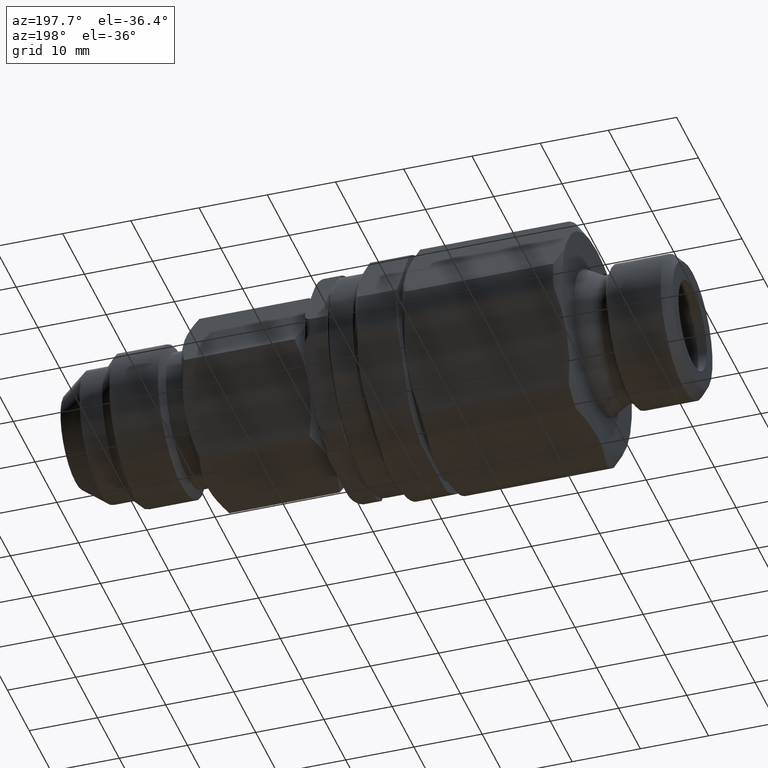
[diagram: clean part render]
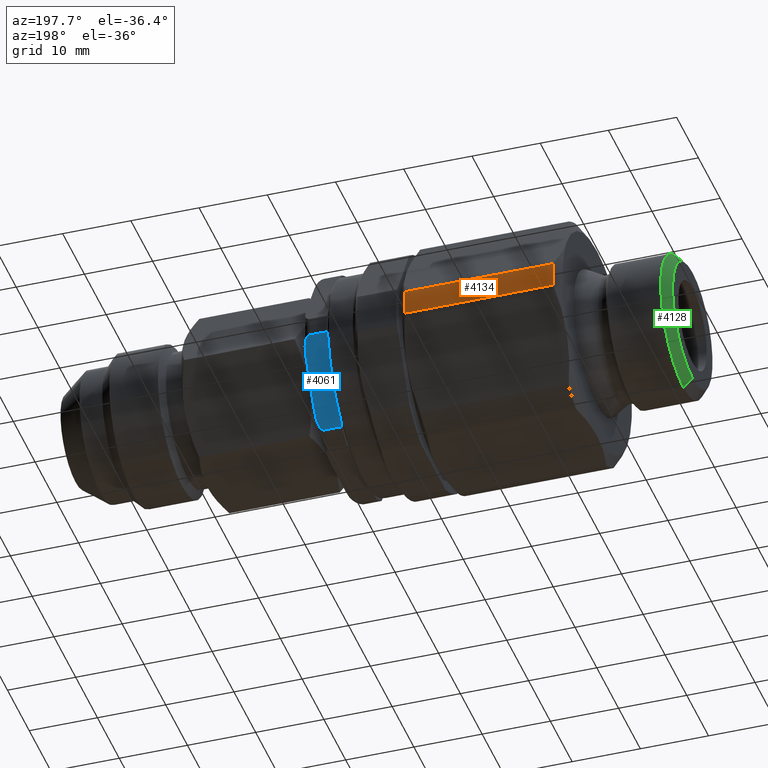
[diagram: same view with three faces highlighted in distinct colors, each labeled with its STEP entity id]
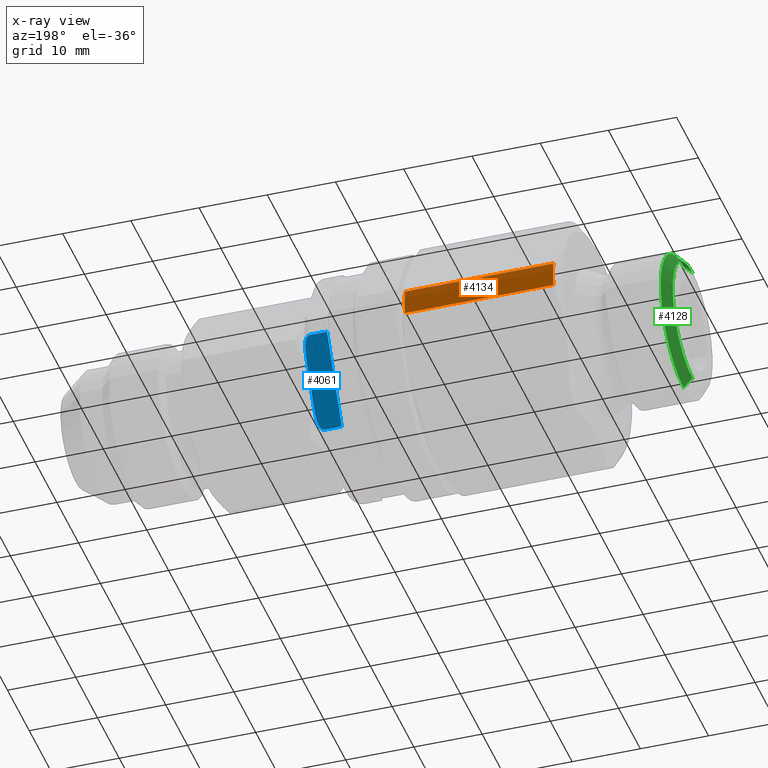
[diagram: x-ray of the same camera — body ghosted, the three highlighted faces saturated]
A machine part, auxiliary view with three faces highlighted in distinct colors.
The next image is the same camera in x-ray (body ghosted, the three faces saturated) — at least one of them is partly hidden behind the body in this view.
Their STEP definitions:

[orange] entity #4134 — the highlighted cylindrical surface (partial cylindrical patch) has radius 17.5 mm, axis along (1, -0, -0).
#179 = CARTESIAN_POINT ( 'NONE',  ( 14.86602540378444100, 0.0000000000000000000, 0.0000000000000000000 ) ) ;
#180 = DIRECTION ( 'NONE',  ( 1.000000000000000000, -0.0000000000000000000, -0.0000000000000000000 ) ) ;
#181 = DIRECTION ( 'NONE',  ( 0.0000000000000000000, 0.0000000000000000000, -1.000000000000000000 ) ) ;
#291 = CARTESIAN_POINT ( 'NONE',  ( 7.552600000000000000, 17.40076818024048000, 1.860985421095666000 ) ) ;
#292 = DIRECTION ( 'NONE',  ( 1.000000000000000000, -0.0000000000000000000, -0.0000000000000000000 ) ) ;
#293 = CARTESIAN_POINT ( 'NONE',  ( 36.63397459621555900, 0.0000000000000000000, 0.0000000000000000000 ) ) ;
#294 = DIRECTION ( 'NONE',  ( 1.000000000000000000, -0.0000000000000000000, -0.0000000000000000000 ) ) ;
#295 = DIRECTION ( 'NONE',  ( 0.0000000000000000000, 0.0000000000000000000, -1.000000000000000000 ) ) ;
#296 = CARTESIAN_POINT ( 'NONE',  ( 7.552600000000000000, 17.40076818024048000, -1.860985421095650900 ) ) ;
#297 = DIRECTION ( 'NONE',  ( -1.000000000000000000, 0.0000000000000000000, 0.0000000000000000000 ) ) ;
#530 = CARTESIAN_POINT ( 'NONE',  ( 36.63397459621555900, 17.40076818024048000, -1.860985421095649100 ) ) ;
#840 = AXIS2_PLACEMENT_3D ( 'NONE', #179, #180, #181 ) ;
#1221 = VERTEX_POINT ( 'NONE', #530 ) ;
#1342 = EDGE_CURVE ( 'NONE', #4259, #4295, #2220, .T. ) ;
#1367 = EDGE_CURVE ( 'NONE', #4295, #4307, #2242, .T. ) ;
#1368 = EDGE_CURVE ( 'NONE', #1221, #4307, #2245, .T. ) ;
#1369 = EDGE_CURVE ( 'NONE', #1221, #4259, #2244, .T. ) ;
#1739 = CARTESIAN_POINT ( 'NONE',  ( 7.552600000000000000, 0.0000000000000000000, 0.0000000000000000000 ) ) ;
#1740 = DIRECTION ( 'NONE',  ( 1.000000000000000000, -0.0000000000000000000, -0.0000000000000000000 ) ) ;
#1741 = DIRECTION ( 'NONE',  ( 0.0000000000000000000, 0.0000000000000000000, -1.000000000000000000 ) ) ;
#2220 = CIRCLE ( 'NONE', #840, 17.50000000000000000 ) ;
#2242 = LINE ( 'NONE', #291, #2243 ) ;
#2243 = VECTOR ( 'NONE', #292, 1000.000000000000000 ) ;
#2244 = LINE ( 'NONE', #296, #2246 ) ;
#2245 = CIRCLE ( 'NONE', #2648, 17.50000000000000000 ) ;
#2246 = VECTOR ( 'NONE', #297, 1000.000000000000000 ) ;
#2565 = FACE_OUTER_BOUND ( 'NONE', #4913, .T. ) ;
#2566 = CYLINDRICAL_SURFACE ( 'NONE', #2889, 17.50000000000000000 ) ;
#2648 = AXIS2_PLACEMENT_3D ( 'NONE', #293, #294, #295 ) ;
#2889 = AXIS2_PLACEMENT_3D ( 'NONE', #1739, #1740, #1741 ) ;
#4134 = ADVANCED_FACE ( 'NONE', ( #2565 ), #2566, .T. ) ;
#4259 = VERTEX_POINT ( 'NONE', #5878 ) ;
#4295 = VERTEX_POINT ( 'NONE', #5914 ) ;
#4307 = VERTEX_POINT ( 'NONE', #5926 ) ;
#4913 = EDGE_LOOP ( 'NONE', ( #5481, #5482, #5483, #5484 ) ) ;
#5481 = ORIENTED_EDGE ( 'NONE', *, *, #1342, .T. ) ;
#5482 = ORIENTED_EDGE ( 'NONE', *, *, #1367, .T. ) ;
#5483 = ORIENTED_EDGE ( 'NONE', *, *, #1368, .F. ) ;
#5484 = ORIENTED_EDGE ( 'NONE', *, *, #1369, .T. ) ;
#5878 = CARTESIAN_POINT ( 'NONE',  ( 14.86602540378444100, 17.40076818024048000, -1.860985421095650900 ) ) ;
#5914 = CARTESIAN_POINT ( 'NONE',  ( 14.86602540378444100, 17.40076818024048000, 1.860985421095666000 ) ) ;
#5926 = CARTESIAN_POINT ( 'NONE',  ( 36.63397459621555900, 17.40076818024047600, 1.860985421095666400 ) ) ;

[blue] entity #4061 — the highlighted planar face has unit normal (0, 0.866, -0.5).
#496 = CARTESIAN_POINT ( 'NONE',  ( 48.98667093580120700, 12.98118405130843700, -6.515929680730987000 ) ) ;
#501 = CARTESIAN_POINT ( 'NONE',  ( 51.05000000000034500, 15.93930566949153200, -1.392312743069990600 ) ) ;
#520 = CARTESIAN_POINT ( 'NONE',  ( 48.50000000000000000, 12.98118405130842500, -6.515929680731016300 ) ) ;
#600 = CARTESIAN_POINT ( 'NONE',  ( 48.98667093580120700, 12.13355265844029200, -7.984070319268992600 ) ) ;
#1152 = VERTEX_POINT ( 'NONE', #5749 ) ;
#1170 = VERTEX_POINT ( 'NONE', #5775 ) ;
#1194 = VERTEX_POINT ( 'NONE', #520 ) ;
#1210 = VERTEX_POINT ( 'NONE', #501 ) ;
#1215 = VERTEX_POINT ( 'NONE', #496 ) ;
#1262 = VERTEX_POINT ( 'NONE', #600 ) ;
#1291 = VERTEX_POINT ( 'NONE', #5815 ) ;
#1447 = EDGE_CURVE ( 'NONE', #1152, #4302, #2317, .T. ) ;
#1449 = EDGE_CURVE ( 'NONE', #4302, #4242, #2319, .T. ) ;
#1452 = EDGE_CURVE ( 'NONE', #4242, #4279, #5713, .T. ) ;
#1455 = EDGE_CURVE ( 'NONE', #4286, #4270, #3264, .T. ) ;
#1460 = EDGE_CURVE ( 'NONE', #1210, #4286, #3272, .T. ) ;
#1463 = EDGE_CURVE ( 'NONE', #1291, #1210, #5716, .T. ) ;
#1557 = EDGE_CURVE ( 'NONE', #4279, #1291, #3365, .T. ) ;
#1573 = EDGE_CURVE ( 'NONE', #4270, #1194, #3390, .T. ) ;
#1575 = EDGE_CURVE ( 'NONE', #1170, #1152, #3392, .T. ) ;
#1576 = EDGE_CURVE ( 'NONE', #1262, #1170, #3395, .T. ) ;
#1577 = EDGE_CURVE ( 'NONE', #1215, #1262, #3397, .T. ) ;
#1578 = EDGE_CURVE ( 'NONE', #1194, #1215, #3399, .T. ) ;
#2317 = LINE ( 'NONE', #3656, #2318 ) ;
#2318 = VECTOR ( 'NONE', #3657, 1000.000000000000100 ) ;
#2319 = LINE ( 'NONE', #3661, #3260 ) ;
#2439 = FACE_OUTER_BOUND ( 'NONE', #4931, .T. ) ;
#2816 = AXIS2_PLACEMENT_3D ( 'NONE', #3051, #3052, #3053 ) ;
#3050 = PLANE ( 'NONE',  #2816 ) ;
#3051 = CARTESIAN_POINT ( 'NONE',  ( 34.74999999999999300, 16.74315780649914100, 5.392068201189613700E-015 ) ) ;
#3052 = DIRECTION ( 'NONE',  ( 0.0000000000000000000, 0.8660254037844391500, -0.4999999999999992800 ) ) ;
#3053 = DIRECTION ( 'NONE',  ( 0.0000000000000000000, 0.4999999999999992200, 0.8660254037844390400 ) ) ;
#3260 = VECTOR ( 'NONE', #3662, 1000.000000000000000 ) ;
#3264 = LINE ( 'NONE', #3699, #3266 ) ;
#3266 = VECTOR ( 'NONE', #3700, 1000.000000000000100 ) ;
#3272 = LINE ( 'NONE', #3711, #3274 ) ;
#3274 = VECTOR ( 'NONE', #3712, 1000.000000000000000 ) ;
#3365 = LINE ( 'NONE', #5310, #3366 ) ;
#3366 = VECTOR ( 'NONE', #5311, 1000.000000000000100 ) ;
#3390 = LINE ( 'NONE', #5371, #3391 ) ;
#3391 = VECTOR ( 'NONE', #5372, 1000.000000000000100 ) ;
#3392 = LINE ( 'NONE', #5376, #3394 ) ;
#3394 = VECTOR ( 'NONE', #5377, 1000.000000000000100 ) ;
#3395 = LINE ( 'NONE', #5378, #3396 ) ;
#3396 = VECTOR ( 'NONE', #5379, 1000.000000000000000 ) ;
#3397 = LINE ( 'NONE', #5380, #3398 ) ;
#3398 = VECTOR ( 'NONE', #5381, 1000.000000000000100 ) ;
#3399 = LINE ( 'NONE', #5382, #3400 ) ;
#3400 = VECTOR ( 'NONE', #5383, 1000.000000000000000 ) ;
#3656 = CARTESIAN_POINT ( 'NONE',  ( 48.49999999999999300, 16.01986835487435500, -1.252774078792755300 ) ) ;
#3657 = DIRECTION ( 'NONE',  ( 0.0000000000000000000, -0.4999999999999992200, -0.8660254037844390400 ) ) ;
#3661 = CARTESIAN_POINT ( 'NONE',  ( 38.72819999999999400, 9.175431040257191000, -13.10768725692998900 ) ) ;
#3662 = DIRECTION ( 'NONE',  ( 1.000000000000000000, -0.0000000000000000000, -0.0000000000000000000 ) ) ;
#3668 = CARTESIAN_POINT ( 'NONE',  ( 51.04999999999999000, 9.175431040257191000, -13.10768725692998900 ) ) ;
#3669 = CARTESIAN_POINT ( 'NONE',  ( 51.12043664067086700, 9.175431040257199900, -13.10768725692998300 ) ) ;
#3670 = CARTESIAN_POINT ( 'NONE',  ( 51.18914357514333300, 9.184499450046129000, -13.09198031043169900 ) ) ;
#3671 = CARTESIAN_POINT ( 'NONE',  ( 51.31388035411716700, 9.215032533152534500, -13.03909545917968900 ) ) ;
#3672 = CARTESIAN_POINT ( 'NONE',  ( 51.37036633271006300, 9.236349375044950300, -13.00217360596511500 ) ) ;
#3673 = CARTESIAN_POINT ( 'NONE',  ( 51.52011896480252800, 9.308450306166655300, -12.87729112998929400 ) ) ;
#3674 = CARTESIAN_POINT ( 'NONE',  ( 51.59701022943537700, 9.367668058738152200, -12.77472297382540700 ) ) ;
#3675 = CARTESIAN_POINT ( 'NONE',  ( 51.78616343476154100, 9.551460390601809200, -12.45638531699599800 ) ) ;
#3676 = CARTESIAN_POINT ( 'NONE',  ( 51.86221295066049900, 9.686380108861760300, -12.22269751002688800 ) ) ;
#3677 = CARTESIAN_POINT ( 'NONE',  ( 51.97120991705353500, 9.954499869927371200, -11.75830046134802300 ) ) ;
#3678 = CARTESIAN_POINT ( 'NONE',  ( 52.00311955523222500, 10.09000515200759400, -11.52359842809112000 ) ) ;
#3679 = CARTESIAN_POINT ( 'NONE',  ( 52.04274974940455700, 10.36256351273724800, -11.05151349927966100 ) ) ;
#3680 = CARTESIAN_POINT ( 'NONE',  ( 52.05000000000003300, 10.49983921575375100, -10.81374500701034300 ) ) ;
#3681 = CARTESIAN_POINT ( 'NONE',  ( 52.04999999994360800, 10.63708191790722800, -10.57603367391248900 ) ) ;
#3699 = CARTESIAN_POINT ( 'NONE',  ( 48.49999999999999300, 16.01986835487435500, -1.252774078792755300 ) ) ;
#3700 = DIRECTION ( 'NONE',  ( 0.0000000000000000000, -0.4999999999999992200, -0.8660254037844390400 ) ) ;
#3711 = CARTESIAN_POINT ( 'NONE',  ( 38.72819999999999400, 15.93930566949153200, -1.392312743069983500 ) ) ;
#3712 = DIRECTION ( 'NONE',  ( -1.000000000000000000, 0.0000000000000000000, 0.0000000000000000000 ) ) ;
#3730 = CARTESIAN_POINT ( 'NONE',  ( 52.04999999999999700, 14.47765479184150500, -3.923966326087490400 ) ) ;
#3731 = CARTESIAN_POINT ( 'NONE',  ( 52.05000000000000400, 14.61512899236933000, -3.685854026043380700 ) ) ;
#3732 = CARTESIAN_POINT ( 'NONE',  ( 52.04277818244424500, 14.75247509618967900, -3.447963596004910000 ) ) ;
#3733 = CARTESIAN_POINT ( 'NONE',  ( 52.00275842358208000, 15.02671364833198100, -2.972968490300311300 ) ) ;
#3734 = CARTESIAN_POINT ( 'NONE',  ( 51.97040121968120000, 15.16319224407245700, -2.736580628332153400 ) ) ;
#3735 = CARTESIAN_POINT ( 'NONE',  ( 51.86033724160394300, 15.43198060714991200, -2.271025526998736500 ) ) ;
#3736 = CARTESIAN_POINT ( 'NONE',  ( 51.78471315233013400, 15.56554789021506300, -2.039680206500956900 ) ) ;
#3737 = CARTESIAN_POINT ( 'NONE',  ( 51.59403825808284700, 15.74951251466937300, -1.721044130150767300 ) ) ;
#3738 = CARTESIAN_POINT ( 'NONE',  ( 51.51796196429081200, 15.80764406335806500, -1.620357334299272800 ) ) ;
#3739 = CARTESIAN_POINT ( 'NONE',  ( 51.36834124280932900, 15.87919776094394000, -1.496422694611120800 ) ) ;
#3740 = CARTESIAN_POINT ( 'NONE',  ( 51.31221866857082100, 15.90021048040286500, -1.460027596903074000 ) ) ;
#3741 = CARTESIAN_POINT ( 'NONE',  ( 51.18826965374938700, 15.93034956405068500, -1.407825172731483200 ) ) ;
#3742 = CARTESIAN_POINT ( 'NONE',  ( 51.11979945140093700, 15.93930566949480000, -1.392312743064344500 ) ) ;
#3743 = CARTESIAN_POINT ( 'NONE',  ( 51.05000000000034500, 15.93930566949153200, -1.392312743069990600 ) ) ;
#4061 = ADVANCED_FACE ( 'NONE', ( #2439 ), #3050, .T. ) ;
#4242 = VERTEX_POINT ( 'NONE', #5849 ) ;
#4270 = VERTEX_POINT ( 'NONE', #5889 ) ;
#4279 = VERTEX_POINT ( 'NONE', #5898 ) ;
#4286 = VERTEX_POINT ( 'NONE', #5905 ) ;
#4302 = VERTEX_POINT ( 'NONE', #5921 ) ;
#4668 = ORIENTED_EDGE ( 'NONE', *, *, #1576, .F. ) ;
#4669 = ORIENTED_EDGE ( 'NONE', *, *, #1577, .F. ) ;
#4670 = ORIENTED_EDGE ( 'NONE', *, *, #1578, .F. ) ;
#4671 = ORIENTED_EDGE ( 'NONE', *, *, #1573, .F. ) ;
#4672 = ORIENTED_EDGE ( 'NONE', *, *, #1455, .F. ) ;
#4673 = ORIENTED_EDGE ( 'NONE', *, *, #1460, .F. ) ;
#4674 = ORIENTED_EDGE ( 'NONE', *, *, #1463, .F. ) ;
#4675 = ORIENTED_EDGE ( 'NONE', *, *, #1557, .F. ) ;
#4676 = ORIENTED_EDGE ( 'NONE', *, *, #1452, .F. ) ;
#4677 = ORIENTED_EDGE ( 'NONE', *, *, #1449, .F. ) ;
#4678 = ORIENTED_EDGE ( 'NONE', *, *, #1447, .F. ) ;
#4679 = ORIENTED_EDGE ( 'NONE', *, *, #1575, .F. ) ;
#4931 = EDGE_LOOP ( 'NONE', ( #4668, #4669, #4670, #4671, #4672, #4673, #4674, #4675, #4676, #4677, #4678, #4679 ) ) ;
#5310 = CARTESIAN_POINT ( 'NONE',  ( 52.04999999999999700, 16.30736835487435200, -0.7548094716167079700 ) ) ;
#5311 = DIRECTION ( 'NONE',  ( 0.0000000000000000000, 0.4999999999999992200, 0.8660254037844390400 ) ) ;
#5371 = CARTESIAN_POINT ( 'NONE',  ( 48.49999999999999300, 16.01986835487435500, -1.252774078792755300 ) ) ;
#5372 = DIRECTION ( 'NONE',  ( 0.0000000000000000000, -0.4999999999999992200, -0.8660254037844390400 ) ) ;
#5376 = CARTESIAN_POINT ( 'NONE',  ( 48.49999999999999300, 16.01986835487435500, -1.252774078792755300 ) ) ;
#5377 = DIRECTION ( 'NONE',  ( 0.0000000000000000000, -0.4999999999999992200, -0.8660254037844390400 ) ) ;
#5378 = CARTESIAN_POINT ( 'NONE',  ( -8.669368517309802500, 12.13355265844023200, -7.984070319269084100 ) ) ;
#5379 = DIRECTION ( 'NONE',  ( -1.000000000000000000, 4.544012971304954700E-017, -0.0000000000000000000 ) ) ;
#5380 = CARTESIAN_POINT ( 'NONE',  ( 48.98667093580120700, 16.18855685674753200, -0.9605970228957363400 ) ) ;
#5381 = DIRECTION ( 'NONE',  ( -2.272006485652474300E-017, -0.4999999999999992200, -0.8660254037844390400 ) ) ;
#5382 = CARTESIAN_POINT ( 'NONE',  ( -8.669368517309802500, 12.98118405130848900, -6.515929680730886600 ) ) ;
#5383 = DIRECTION ( 'NONE',  ( 1.000000000000000000, -4.544012971304954700E-017, 0.0000000000000000000 ) ) ;
#5713 = B_SPLINE_CURVE_WITH_KNOTS ( 'NONE', 3,
 ( #3668, #3669, #3670, #3671, #3672, #3673, #3674, #3675, #3676, #3677, #3678, #3679, #3680, #3681 ),
 .UNSPECIFIED., .F., .F.,
 ( 4, 2, 2, 2, 2, 2, 4 ),
 ( 1.968157306831824800E-007, 0.0002081512717151574300, 0.0004161057276996316700, 0.0008320146396685788000, 0.001663832463606463800, 0.002495650287544348400, 0.003327468111482233300 ),
 .UNSPECIFIED. ) ;
#5716 = B_SPLINE_CURVE_WITH_KNOTS ( 'NONE', 3,
 ( #3730, #3731, #3732, #3733, #3734, #3735, #3736, #3737, #3738, #3739, #3740, #3741, #3742, #3743 ),
 .UNSPECIFIED., .F., .F.,
 ( 4, 2, 2, 2, 2, 2, 4 ),
 ( 0.01109471046828449700, 0.01192798848209872300, 0.01276126649591294600, 0.01359454450972717000, 0.01401118351663428900, 0.01421950302008785100, 0.01442782252354141100 ),
 .UNSPECIFIED. ) ;
#5749 = CARTESIAN_POINT ( 'NONE',  ( 48.49999999999999300, 9.748787752505977600, -12.11460430045444500 ) ) ;
#5775 = CARTESIAN_POINT ( 'NONE',  ( 48.50000000000000000, 12.13355265844031400, -7.984070319268965000 ) ) ;
#5815 = CARTESIAN_POINT ( 'NONE',  ( 52.04999999999999700, 14.47765479184150500, -3.923966326087490400 ) ) ;
#5849 = CARTESIAN_POINT ( 'NONE',  ( 51.04999999999999000, 9.175431040257191000, -13.10768725692998900 ) ) ;
#5889 = CARTESIAN_POINT ( 'NONE',  ( 48.49999999999999300, 15.36594895724275000, -2.385395699545530300 ) ) ;
#5898 = CARTESIAN_POINT ( 'NONE',  ( 52.04999999994360800, 10.63708191790722800, -10.57603367391248900 ) ) ;
#5905 = CARTESIAN_POINT ( 'NONE',  ( 48.49999999999999300, 15.93930566949153200, -1.392312743069983500 ) ) ;
#5921 = CARTESIAN_POINT ( 'NONE',  ( 48.49999999999999300, 9.175431040257203500, -13.10768725692998200 ) ) ;

[green] entity #4128 — the highlighted conical surface has half-angle 45 deg.
#509 = CARTESIAN_POINT ( 'NONE',  ( 0.0000000000000000000, 1.201837752513233600E-015, 9.149999999999996800 ) ) ;
#611 = CARTESIAN_POINT ( 'NONE',  ( 0.0000000000000000000, 0.0000000000000000000, -9.149999999999996800 ) ) ;
#1100 = ORIENTED_EDGE ( 'NONE', *, *, #1534, .T. ) ;
#1102 = ORIENTED_EDGE ( 'NONE', *, *, #1537, .F. ) ;
#1106 = ORIENTED_EDGE ( 'NONE', *, *, #1535, .T. ) ;
#1108 = ORIENTED_EDGE ( 'NONE', *, *, #1536, .F. ) ;
#1143 = VERTEX_POINT ( 'NONE', #5752 ) ;
#1147 = VERTEX_POINT ( 'NONE', #5784 ) ;
#1195 = VERTEX_POINT ( 'NONE', #509 ) ;
#1274 = VERTEX_POINT ( 'NONE', #611 ) ;
#1534 = EDGE_CURVE ( 'NONE', #1274, #1195, #3333, .T. ) ;
#1535 = EDGE_CURVE ( 'NONE', #1195, #1147, #3332, .T. ) ;
#1536 = EDGE_CURVE ( 'NONE', #1143, #1147, #3336, .T. ) ;
#1537 = EDGE_CURVE ( 'NONE', #1274, #1143, #3335, .T. ) ;
#1721 = CARTESIAN_POINT ( 'NONE',  ( 1.327499999999997200, 0.0000000000000000000, 0.0000000000000000000 ) ) ;
#1722 = DIRECTION ( 'NONE',  ( 1.000000000000000000, -0.0000000000000000000, -0.0000000000000000000 ) ) ;
#1723 = DIRECTION ( 'NONE',  ( 0.0000000000000000000, 0.0000000000000000000, -1.000000000000000000 ) ) ;
#2553 = FACE_OUTER_BOUND ( 'NONE', #4995, .T. ) ;
#2554 = CONICAL_SURFACE ( 'NONE', #2883, 10.47749999999999900, 0.7853981633974501700 ) ;
#2727 = AXIS2_PLACEMENT_3D ( 'NONE', #5251, #5252, #5253 ) ;
#2728 = AXIS2_PLACEMENT_3D ( 'NONE', #5256, #5257, #5258 ) ;
#2883 = AXIS2_PLACEMENT_3D ( 'NONE', #1721, #1722, #1723 ) ;
#3332 = LINE ( 'NONE', #5254, #3334 ) ;
#3333 = CIRCLE ( 'NONE', #2727, 9.149999999999996800 ) ;
#3334 = VECTOR ( 'NONE', #5255, 999.9999999999998900 ) ;
#3335 = LINE ( 'NONE', #5259, #3337 ) ;
#3336 = CIRCLE ( 'NONE', #2728, 10.47749999999999900 ) ;
#3337 = VECTOR ( 'NONE', #5260, 999.9999999999998900 ) ;
#4128 = ADVANCED_FACE ( 'NONE', ( #2553 ), #2554, .T. ) ;
#4995 = EDGE_LOOP ( 'NONE', ( #1100, #1106, #1108, #1102 ) ) ;
#5251 = CARTESIAN_POINT ( 'NONE',  ( 0.0000000000000000000, 0.0000000000000000000, 0.0000000000000000000 ) ) ;
#5252 = DIRECTION ( 'NONE',  ( 1.000000000000000000, -0.0000000000000000000, -0.0000000000000000000 ) ) ;
#5253 = DIRECTION ( 'NONE',  ( 0.0000000000000000000, 0.0000000000000000000, -1.000000000000000000 ) ) ;
#5254 = CARTESIAN_POINT ( 'NONE',  ( 1.327499999999997200, 1.283123683806639200E-015, 10.47749999999999900 ) ) ;
#5255 = DIRECTION ( 'NONE',  ( 0.7071067811865462400, 8.659560562354950100E-017, 0.7071067811865489100 ) ) ;
#5256 = CARTESIAN_POINT ( 'NONE',  ( 1.327499999999997200, 0.0000000000000000000, 0.0000000000000000000 ) ) ;
#5257 = DIRECTION ( 'NONE',  ( 1.000000000000000000, -0.0000000000000000000, -0.0000000000000000000 ) ) ;
#5258 = DIRECTION ( 'NONE',  ( 0.0000000000000000000, 0.0000000000000000000, -1.000000000000000000 ) ) ;
#5259 = CARTESIAN_POINT ( 'NONE',  ( 1.327499999999997200, 0.0000000000000000000, -10.47749999999999900 ) ) ;
#5260 = DIRECTION ( 'NONE',  ( 0.7071067811865462400, 0.0000000000000000000, -0.7071067811865489100 ) ) ;
#5752 = CARTESIAN_POINT ( 'NONE',  ( 1.327499999999997200, 0.0000000000000000000, -10.47749999999999900 ) ) ;
#5784 = CARTESIAN_POINT ( 'NONE',  ( 1.327499999999997200, 1.283123683806639200E-015, 10.47749999999999900 ) ) ;